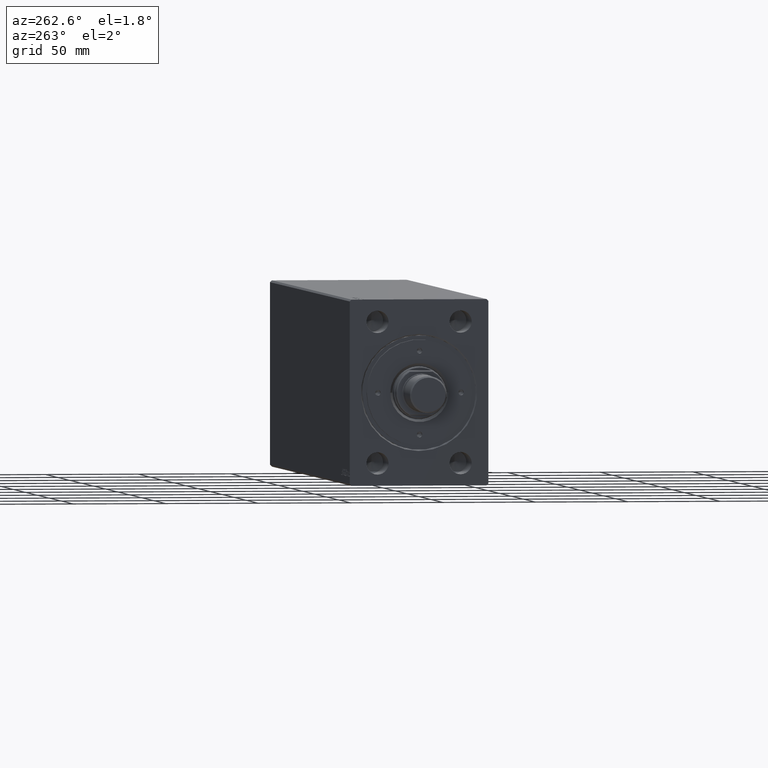
[diagram: clean part render]
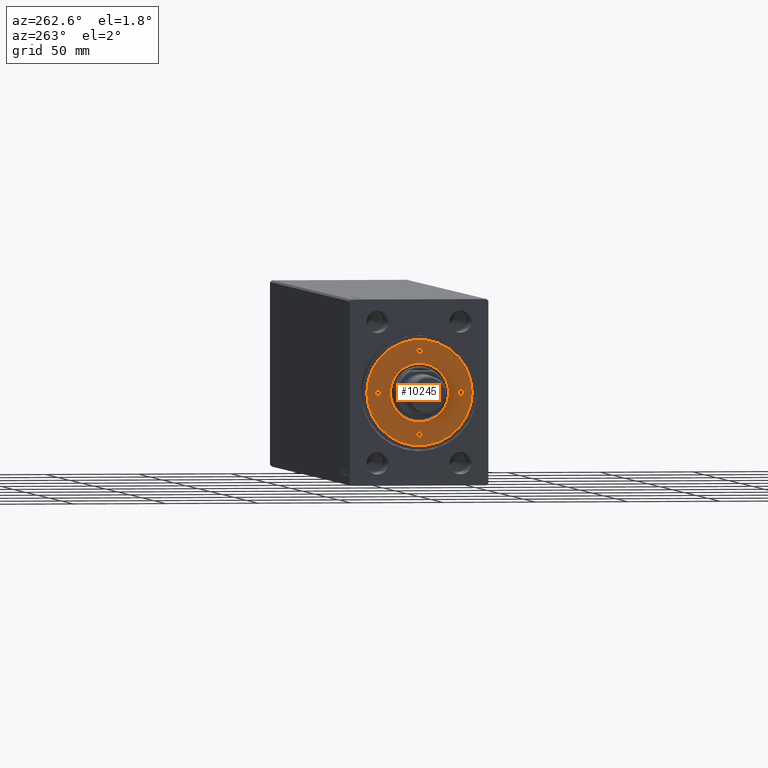
[diagram: same view with one face highlighted and labeled with its STEP entity id]
A machine part, auxiliary view. The second image highlights one B-rep face of the part: STEP entity #10245.
In plain terms, the highlighted planar face has unit normal (-1, 0, 0).
Its self-contained STEP definition (entity closure, byte-faithful):
#577 = ORIENTED_EDGE ( 'NONE', *, *, #28709, .F. ) ;
#2153 = VERTEX_POINT ( 'NONE', #43376 ) ;
#2366 = FACE_BOUND ( 'NONE', #37753, .T. ) ;
#2761 = EDGE_CURVE ( 'NONE', #25079, #16647, #34565, .T. ) ;
#2783 = CARTESIAN_POINT ( 'NONE',  ( 0.000000000000000000, -22.50000000000000000, 9.999999999999998224 ) ) ;
#3027 = CARTESIAN_POINT ( 'NONE',  ( 1.499999999999996891, -22.50000000000000000, 9.999999999999998224 ) ) ;
#3329 = DIRECTION ( 'NONE',  ( 1.000000000000000000, 0.000000000000000000, 0.000000000000000000 ) ) ;
#3748 = CARTESIAN_POINT ( 'NONE',  ( 22.50000000000000000, 0.000000000000000000, 9.999999999999998224 ) ) ;
#3924 = ORIENTED_EDGE ( 'NONE', *, *, #26627, .F. ) ;
#4187 = CIRCLE ( 'NONE', #30090, 1.499999999999996891 ) ;
#4216 = ORIENTED_EDGE ( 'NONE', *, *, #34258, .T. ) ;
#4747 = EDGE_LOOP ( 'NONE', ( #23717, #4216 ) ) ;
#5018 = EDGE_CURVE ( 'NONE', #12383, #21334, #6841, .T. ) ;
#5383 = DIRECTION ( 'NONE',  ( 1.000000000000000000, 0.000000000000000000, 0.000000000000000000 ) ) ;
#5986 = DIRECTION ( 'NONE',  ( 1.000000000000000000, 0.000000000000000000, 0.000000000000000000 ) ) ;
#6370 = DIRECTION ( 'NONE',  ( -0.000000000000000000, -0.000000000000000000, 1.000000000000000000 ) ) ;
#6420 = AXIS2_PLACEMENT_3D ( 'NONE', #16774, #6440, #5986 ) ;
#6440 = DIRECTION ( 'NONE',  ( -0.000000000000000000, -0.000000000000000000, 1.000000000000000000 ) ) ;
#6841 = CIRCLE ( 'NONE', #24669, 28.50000000000000000 ) ;
#6872 = AXIS2_PLACEMENT_3D ( 'NONE', #12284, #43535, #21971 ) ;
#7168 = ORIENTED_EDGE ( 'NONE', *, *, #20844, .T. ) ;
#7226 = DIRECTION ( 'NONE',  ( -0.000000000000000000, -0.000000000000000000, 1.000000000000000000 ) ) ;
#7671 = DIRECTION ( 'NONE',  ( 1.000000000000000000, 0.000000000000000000, 0.000000000000000000 ) ) ;
#8313 = VERTEX_POINT ( 'NONE', #41010 ) ;
#8664 = CIRCLE ( 'NONE', #33823, 15.79999999999997762 ) ;
#8895 = DIRECTION ( 'NONE',  ( -0.000000000000000000, -0.000000000000000000, 1.000000000000000000 ) ) ;
#9529 = ORIENTED_EDGE ( 'NONE', *, *, #14236, .F. ) ;
#10180 = AXIS2_PLACEMENT_3D ( 'NONE', #20969, #41653, #40998 ) ;
#10201 = VERTEX_POINT ( 'NONE', #3027 ) ;
#10245 = ADVANCED_FACE ( 'NONE', ( #13366, #2366, #44175, #16067, #36988, #12929 ), #33401, .T. ) ;
#10257 = DIRECTION ( 'NONE',  ( 1.000000000000000000, 0.000000000000000000, 0.000000000000000000 ) ) ;
#10796 = VERTEX_POINT ( 'NONE', #32805 ) ;
#10915 = CARTESIAN_POINT ( 'NONE',  ( 0.000000000000000000, 22.50000000000000000, 9.999999999999998224 ) ) ;
#10964 = EDGE_LOOP ( 'NONE', ( #9529, #3924 ) ) ;
#11011 = AXIS2_PLACEMENT_3D ( 'NONE', #26166, #6370, #27061 ) ;
#11164 = CIRCLE ( 'NONE', #6872, 28.50000000000000000 ) ;
#11516 = EDGE_CURVE ( 'NONE', #10201, #13217, #29519, .T. ) ;
#11543 = CARTESIAN_POINT ( 'NONE',  ( 0.000000000000000000, 0.000000000000000000, 9.999999999999998224 ) ) ;
#12255 = EDGE_CURVE ( 'NONE', #27607, #10796, #8664, .T. ) ;
#12284 = CARTESIAN_POINT ( 'NONE',  ( 0.000000000000000000, 0.000000000000000000, 9.999999999999998224 ) ) ;
#12383 = VERTEX_POINT ( 'NONE', #31189 ) ;
#12929 = FACE_OUTER_BOUND ( 'NONE', #4747, .T. ) ;
#13217 = VERTEX_POINT ( 'NONE', #36169 ) ;
#13341 = DIRECTION ( 'NONE',  ( -0.000000000000000000, -0.000000000000000000, 1.000000000000000000 ) ) ;
#13366 = FACE_BOUND ( 'NONE', #13991, .T. ) ;
#13759 = CARTESIAN_POINT ( 'NONE',  ( 0.000000000000000000, -22.50000000000000000, 9.999999999999998224 ) ) ;
#13991 = EDGE_LOOP ( 'NONE', ( #43194, #31012 ) ) ;
#14236 = EDGE_CURVE ( 'NONE', #2153, #42492, #30198, .T. ) ;
#14603 = CIRCLE ( 'NONE', #11011, 1.499999999999996891 ) ;
#14870 = ORIENTED_EDGE ( 'NONE', *, *, #19671, .F. ) ;
#15783 = ORIENTED_EDGE ( 'NONE', *, *, #24335, .F. ) ;
#16067 = FACE_BOUND ( 'NONE', #21103, .T. ) ;
#16647 = VERTEX_POINT ( 'NONE', #24276 ) ;
#16774 = CARTESIAN_POINT ( 'NONE',  ( 22.50000000000000000, 0.000000000000000000, 9.999999999999998224 ) ) ;
#17256 = CARTESIAN_POINT ( 'NONE',  ( -23.99999999999999645, 1.836970198721027222E-16, 9.999999999999998224 ) ) ;
#17540 = DIRECTION ( 'NONE',  ( -0.000000000000000000, -0.000000000000000000, -1.000000000000000000 ) ) ;
#18650 = EDGE_CURVE ( 'NONE', #16647, #25079, #40568, .T. ) ;
#18748 = CARTESIAN_POINT ( 'NONE',  ( -1.499999999999996891, 22.50000000000000000, 9.999999999999998224 ) ) ;
#18947 = CIRCLE ( 'NONE', #39044, 1.499999999999996891 ) ;
#19184 = CARTESIAN_POINT ( 'NONE',  ( 28.50000000000000000, 3.490243377569956456E-15, 9.999999999999998224 ) ) ;
#19330 = AXIS2_PLACEMENT_3D ( 'NONE', #40581, #30037, #27099 ) ;
#19671 = EDGE_CURVE ( 'NONE', #38340, #8313, #14603, .T. ) ;
#20070 = CIRCLE ( 'NONE', #6420, 1.499999999999997780 ) ;
#20163 = AXIS2_PLACEMENT_3D ( 'NONE', #13759, #7226, #7671 ) ;
#20418 = DIRECTION ( 'NONE',  ( -0.000000000000000000, -0.000000000000000000, 1.000000000000000000 ) ) ;
#20708 = EDGE_LOOP ( 'NONE', ( #7168, #34489 ) ) ;
#20844 = EDGE_CURVE ( 'NONE', #10796, #27607, #37629, .T. ) ;
#20969 = CARTESIAN_POINT ( 'NONE',  ( -22.50000000000000000, 0.000000000000000000, 9.999999999999998224 ) ) ;
#21103 = EDGE_LOOP ( 'NONE', ( #28333, #15783 ) ) ;
#21334 = VERTEX_POINT ( 'NONE', #19184 ) ;
#21450 = CARTESIAN_POINT ( 'NONE',  ( 21.00000000000000000, 1.836970198721027222E-16, 9.999999999999998224 ) ) ;
#21534 = AXIS2_PLACEMENT_3D ( 'NONE', #3748, #20418, #3329 ) ;
#21971 = DIRECTION ( 'NONE',  ( 1.000000000000000000, 0.000000000000000000, 0.000000000000000000 ) ) ;
#22485 = DIRECTION ( 'NONE',  ( 0.000000000000000000, 0.000000000000000000, 1.000000000000000000 ) ) ;
#23266 = AXIS2_PLACEMENT_3D ( 'NONE', #31169, #30957, #10257 ) ;
#23277 = CARTESIAN_POINT ( 'NONE',  ( -15.79999999999997407, 1.934941942652814868E-15, 9.999999999999998224 ) ) ;
#23717 = ORIENTED_EDGE ( 'NONE', *, *, #5018, .T. ) ;
#24276 = CARTESIAN_POINT ( 'NONE',  ( -21.00000000000000000, 0.000000000000000000, 9.999999999999998224 ) ) ;
#24335 = EDGE_CURVE ( 'NONE', #13217, #10201, #4187, .T. ) ;
#24669 = AXIS2_PLACEMENT_3D ( 'NONE', #32845, #22485, #5383 ) ;
#25079 = VERTEX_POINT ( 'NONE', #17256 ) ;
#25538 = DIRECTION ( 'NONE',  ( -0.000000000000000000, -0.000000000000000000, 1.000000000000000000 ) ) ;
#26166 = CARTESIAN_POINT ( 'NONE',  ( 0.000000000000000000, 22.50000000000000000, 9.999999999999998224 ) ) ;
#26627 = EDGE_CURVE ( 'NONE', #42492, #2153, #20070, .T. ) ;
#27061 = DIRECTION ( 'NONE',  ( 1.000000000000000000, 0.000000000000000000, 0.000000000000000000 ) ) ;
#27099 = DIRECTION ( 'NONE',  ( 1.000000000000000000, 0.000000000000000000, -0.000000000000000000 ) ) ;
#27607 = VERTEX_POINT ( 'NONE', #23277 ) ;
#28333 = ORIENTED_EDGE ( 'NONE', *, *, #11516, .F. ) ;
#28709 = EDGE_CURVE ( 'NONE', #8313, #38340, #18947, .T. ) ;
#29119 = AXIS2_PLACEMENT_3D ( 'NONE', #36552, #8895, #33411 ) ;
#29519 = CIRCLE ( 'NONE', #20163, 1.499999999999996891 ) ;
#30037 = DIRECTION ( 'NONE',  ( 0.000000000000000000, 0.000000000000000000, 1.000000000000000000 ) ) ;
#30090 = AXIS2_PLACEMENT_3D ( 'NONE', #2783, #13341, #37409 ) ;
#30198 = CIRCLE ( 'NONE', #21534, 1.499999999999997780 ) ;
#30957 = DIRECTION ( 'NONE',  ( -0.000000000000000000, -0.000000000000000000, -1.000000000000000000 ) ) ;
#31012 = ORIENTED_EDGE ( 'NONE', *, *, #2761, .F. ) ;
#31169 = CARTESIAN_POINT ( 'NONE',  ( 0.000000000000000000, 0.000000000000000000, 9.999999999999998224 ) ) ;
#31189 = CARTESIAN_POINT ( 'NONE',  ( -28.50000000000000000, 0.000000000000000000, 9.999999999999998224 ) ) ;
#31405 = DIRECTION ( 'NONE',  ( 1.000000000000000000, 0.000000000000000000, 0.000000000000000000 ) ) ;
#32805 = CARTESIAN_POINT ( 'NONE',  ( 15.79999999999997407, 0.000000000000000000, 9.999999999999998224 ) ) ;
#32845 = CARTESIAN_POINT ( 'NONE',  ( 0.000000000000000000, 0.000000000000000000, 9.999999999999998224 ) ) ;
#33401 = PLANE ( 'NONE',  #19330 ) ;
#33411 = DIRECTION ( 'NONE',  ( 1.000000000000000000, 0.000000000000000000, 0.000000000000000000 ) ) ;
#33823 = AXIS2_PLACEMENT_3D ( 'NONE', #11543, #17540, #38230 ) ;
#34258 = EDGE_CURVE ( 'NONE', #21334, #12383, #11164, .T. ) ;
#34489 = ORIENTED_EDGE ( 'NONE', *, *, #12255, .T. ) ;
#34565 = CIRCLE ( 'NONE', #10180, 1.499999999999997780 ) ;
#36169 = CARTESIAN_POINT ( 'NONE',  ( -1.499999999999996891, -22.50000000000000000, 9.999999999999998224 ) ) ;
#36552 = CARTESIAN_POINT ( 'NONE',  ( -22.50000000000000000, 0.000000000000000000, 9.999999999999998224 ) ) ;
#36988 = FACE_BOUND ( 'NONE', #20708, .T. ) ;
#37409 = DIRECTION ( 'NONE',  ( 1.000000000000000000, 0.000000000000000000, 0.000000000000000000 ) ) ;
#37629 = CIRCLE ( 'NONE', #23266, 15.79999999999997762 ) ;
#37753 = EDGE_LOOP ( 'NONE', ( #577, #14870 ) ) ;
#38230 = DIRECTION ( 'NONE',  ( 1.000000000000000000, 0.000000000000000000, 0.000000000000000000 ) ) ;
#38340 = VERTEX_POINT ( 'NONE', #18748 ) ;
#39044 = AXIS2_PLACEMENT_3D ( 'NONE', #10915, #25538, #31405 ) ;
#40568 = CIRCLE ( 'NONE', #29119, 1.499999999999997780 ) ;
#40581 = CARTESIAN_POINT ( 'NONE',  ( 0.000000000000000000, 0.000000000000000000, 9.999999999999998224 ) ) ;
#40998 = DIRECTION ( 'NONE',  ( 1.000000000000000000, 0.000000000000000000, 0.000000000000000000 ) ) ;
#41010 = CARTESIAN_POINT ( 'NONE',  ( 1.499999999999996891, 22.50000000000000000, 9.999999999999998224 ) ) ;
#41653 = DIRECTION ( 'NONE',  ( -0.000000000000000000, -0.000000000000000000, 1.000000000000000000 ) ) ;
#42492 = VERTEX_POINT ( 'NONE', #21450 ) ;
#43194 = ORIENTED_EDGE ( 'NONE', *, *, #18650, .F. ) ;
#43376 = CARTESIAN_POINT ( 'NONE',  ( 23.99999999999999645, 0.000000000000000000, 9.999999999999998224 ) ) ;
#43535 = DIRECTION ( 'NONE',  ( 0.000000000000000000, 0.000000000000000000, 1.000000000000000000 ) ) ;
#44175 = FACE_BOUND ( 'NONE', #10964, .T. ) ;